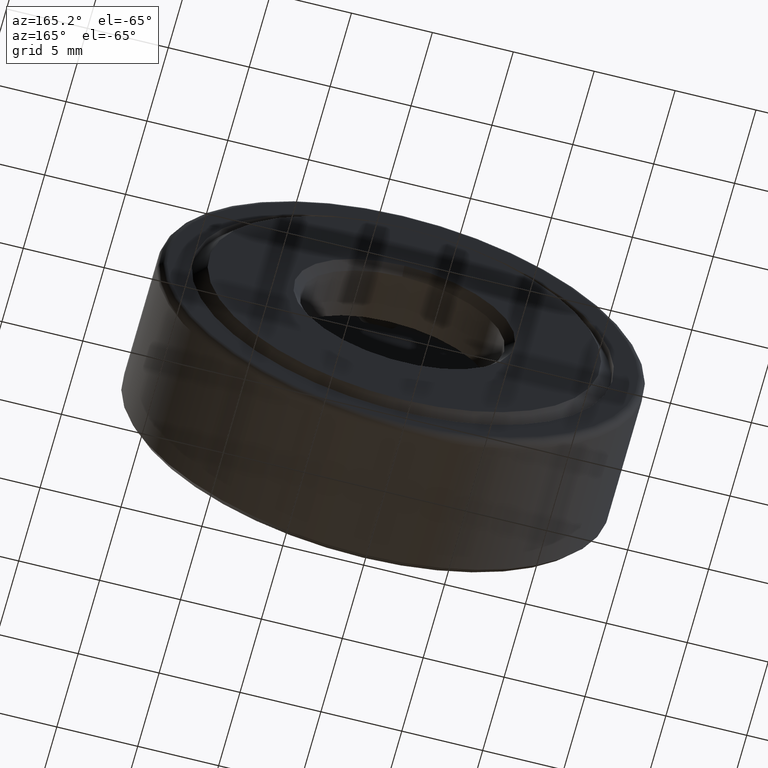
[diagram: clean part render]
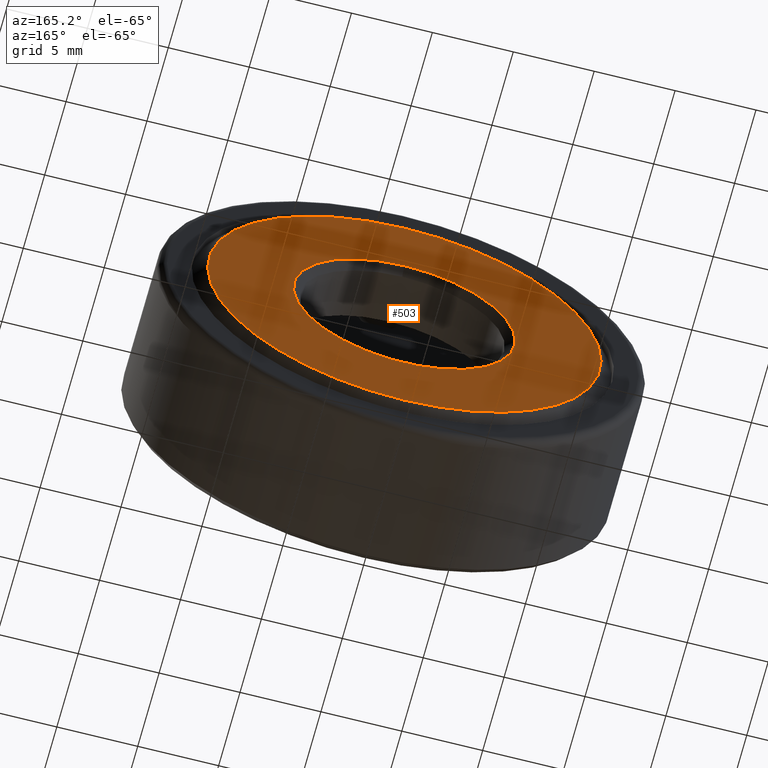
[diagram: same view with one face highlighted and labeled with its STEP entity id]
A machine part, auxiliary view. The second image highlights one B-rep face of the part: STEP entity #503.
In plain terms, the highlighted planar face has unit normal (-0, 1, 0).
Its self-contained STEP definition (entity closure, byte-faithful):
#10 = EDGE_CURVE ( 'NONE', #118, #118, #107, .T. ) ;
#76 = CARTESIAN_POINT ( 'NONE',  ( 0.0000000000000000000, 0.3750000000000000600, 0.4787499999999997900 ) ) ;
#80 = FACE_OUTER_BOUND ( 'NONE', #355, .T. ) ;
#107 = CIRCLE ( 'NONE', #388, 0.4787499999999997900 ) ;
#108 = AXIS2_PLACEMENT_3D ( 'NONE', #189, #143, #331 ) ;
#118 = VERTEX_POINT ( 'NONE', #76 ) ;
#119 = DIRECTION ( 'NONE',  ( 0.0000000000000000000, 0.0000000000000000000, 1.000000000000000000 ) ) ;
#122 = DIRECTION ( 'NONE',  ( -0.0000000000000000000, 1.000000000000000000, -0.0000000000000000000 ) ) ;
#143 = DIRECTION ( 'NONE',  ( -0.0000000000000000000, 1.000000000000000000, 0.0000000000000000000 ) ) ;
#159 = VERTEX_POINT ( 'NONE', #490 ) ;
#189 = CARTESIAN_POINT ( 'NONE',  ( 0.0000000000000000000, 0.3750000000000000600, 0.0000000000000000000 ) ) ;
#211 = FACE_BOUND ( 'NONE', #398, .T. ) ;
#215 = ORIENTED_EDGE ( 'NONE', *, *, #581, .F. ) ;
#253 = CARTESIAN_POINT ( 'NONE',  ( 0.0000000000000000000, 0.3750000000000000600, 0.0000000000000000000 ) ) ;
#255 = CIRCLE ( 'NONE', #601, 0.2700000000000000200 ) ;
#331 = DIRECTION ( 'NONE',  ( 0.0000000000000000000, 0.0000000000000000000, 1.000000000000000000 ) ) ;
#355 = EDGE_LOOP ( 'NONE', ( #432 ) ) ;
#356 = DIRECTION ( 'NONE',  ( -0.0000000000000000000, 1.000000000000000000, -0.0000000000000000000 ) ) ;
#359 = DIRECTION ( 'NONE',  ( 0.0000000000000000000, 0.0000000000000000000, 1.000000000000000000 ) ) ;
#388 = AXIS2_PLACEMENT_3D ( 'NONE', #447, #356, #359 ) ;
#398 = EDGE_LOOP ( 'NONE', ( #215 ) ) ;
#422 = PLANE ( 'NONE',  #108 ) ;
#432 = ORIENTED_EDGE ( 'NONE', *, *, #10, .T. ) ;
#447 = CARTESIAN_POINT ( 'NONE',  ( 0.0000000000000000000, 0.3750000000000000600, 0.0000000000000000000 ) ) ;
#490 = CARTESIAN_POINT ( 'NONE',  ( 0.0000000000000000000, 0.3750000000000000600, 0.2700000000000000200 ) ) ;
#503 = ADVANCED_FACE ( 'NONE', ( #80, #211 ), #422, .T. ) ;
#581 = EDGE_CURVE ( 'NONE', #159, #159, #255, .T. ) ;
#601 = AXIS2_PLACEMENT_3D ( 'NONE', #253, #122, #119 ) ;